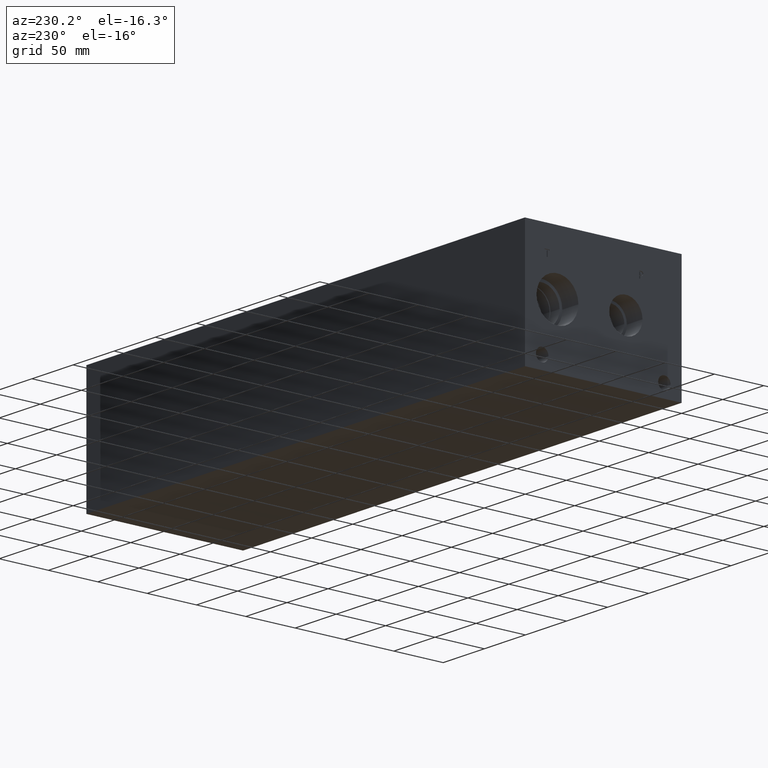
[diagram: clean part render]
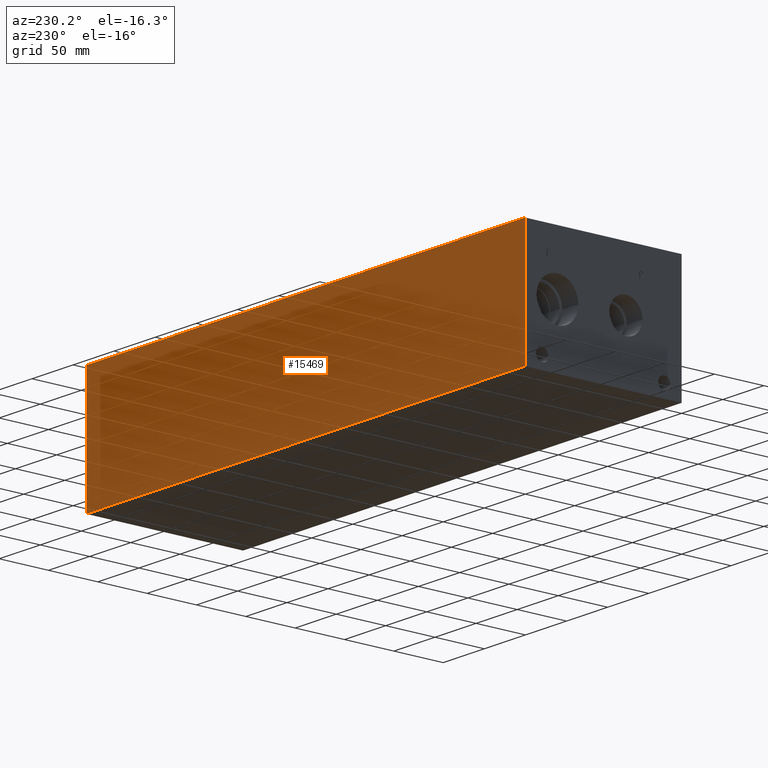
[diagram: same view with one face highlighted and labeled with its STEP entity id]
A machine part, auxiliary view. The second image highlights one B-rep face of the part: STEP entity #15469.
In plain terms, the highlighted planar face has unit normal (0, 1, 0).
Its self-contained STEP definition (entity closure, byte-faithful):
#2110=FACE_OUTER_BOUND('',#3029,.T.);
#3029=EDGE_LOOP('',(#13571,#13572,#13573,#13574));
#4089=LINE('',#24696,#5452);
#4149=LINE('',#24969,#5512);
#4447=LINE('',#26673,#5810);
#4448=LINE('',#26674,#5811);
#5452=VECTOR('',#18225,10.);
#5512=VECTOR('',#18339,10.);
#5810=VECTOR('',#19975,10.);
#5811=VECTOR('',#19976,10.);
#6717=VERTEX_POINT('',#24693);
#6718=VERTEX_POINT('',#24695);
#6775=VERTEX_POINT('',#24965);
#6776=VERTEX_POINT('',#24967);
#8647=EDGE_CURVE('',#6717,#6718,#4089,.T.);
#8731=EDGE_CURVE('',#6775,#6776,#4149,.T.);
#9441=EDGE_CURVE('',#6717,#6775,#4447,.T.);
#9442=EDGE_CURVE('',#6718,#6776,#4448,.T.);
#13571=ORIENTED_EDGE('',*,*,#9441,.T.);
#13572=ORIENTED_EDGE('',*,*,#8731,.T.);
#13573=ORIENTED_EDGE('',*,*,#9442,.F.);
#13574=ORIENTED_EDGE('',*,*,#8647,.F.);
#14132=PLANE('',#16527);
#15469=ADVANCED_FACE('',(#2110),#14132,.T.);
#16527=AXIS2_PLACEMENT_3D('',#26672,#19973,#19974);
#18225=DIRECTION('',(0.,0.,1.));
#18339=DIRECTION('',(0.,0.,1.));
#19973=DIRECTION('center_axis',(0.,1.,0.));
#19974=DIRECTION('ref_axis',(-1.,0.,0.));
#19975=DIRECTION('',(-1.,0.,0.));
#19976=DIRECTION('',(-1.,0.,0.));
#24693=CARTESIAN_POINT('',(533.4,158.75,0.));
#24695=CARTESIAN_POINT('',(533.4,158.75,120.65));
#24696=CARTESIAN_POINT('',(533.4,158.75,0.));
#24965=CARTESIAN_POINT('',(0.,158.75,0.));
#24967=CARTESIAN_POINT('',(0.,158.75,120.65));
#24969=CARTESIAN_POINT('',(0.,158.75,0.));
#26672=CARTESIAN_POINT('Origin',(533.4,158.75,0.));
#26673=CARTESIAN_POINT('',(533.4,158.75,0.));
#26674=CARTESIAN_POINT('',(533.4,158.75,120.65));